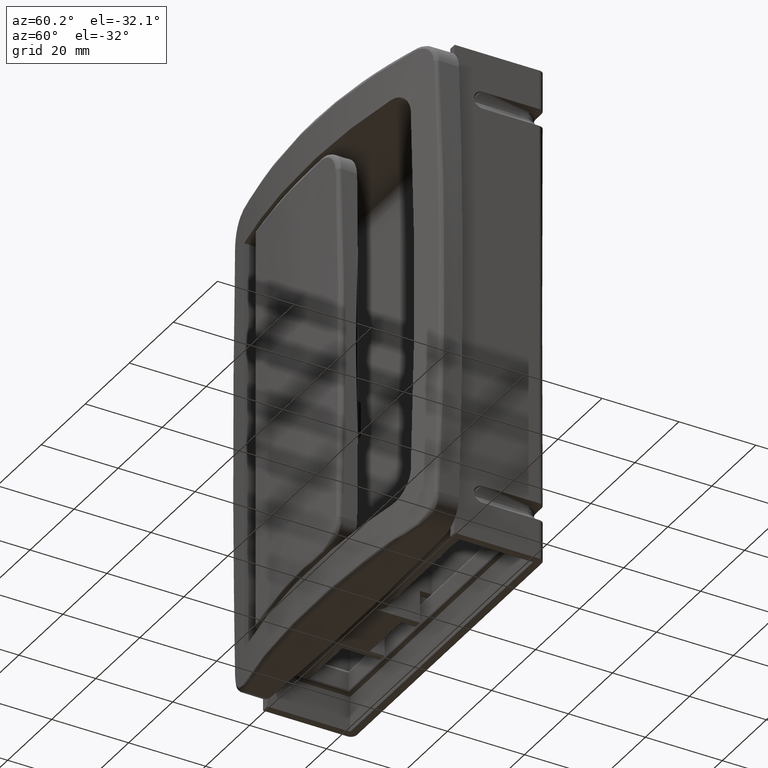
[diagram: clean part render]
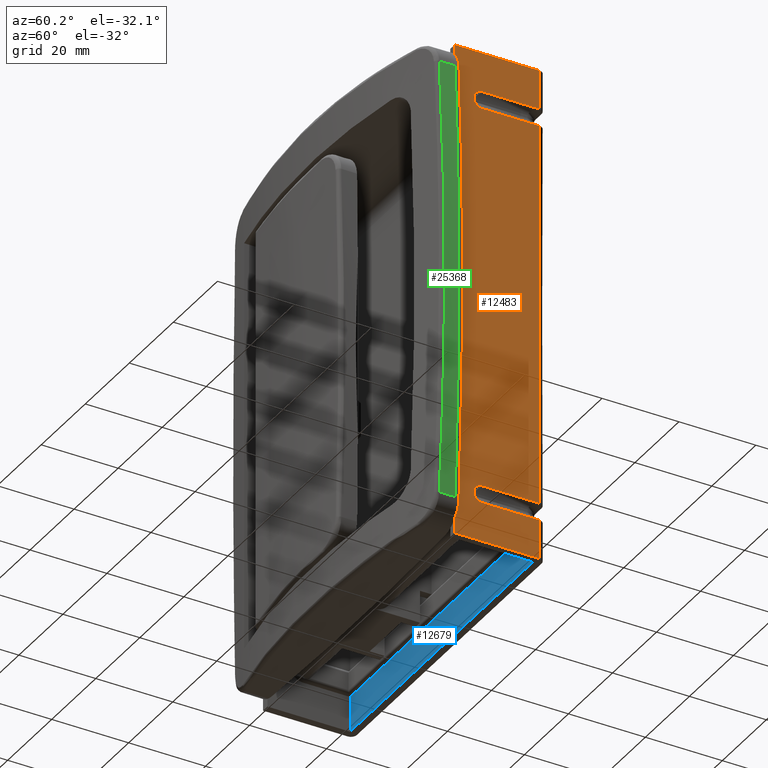
[diagram: same view with three faces highlighted in distinct colors, each labeled with its STEP entity id]
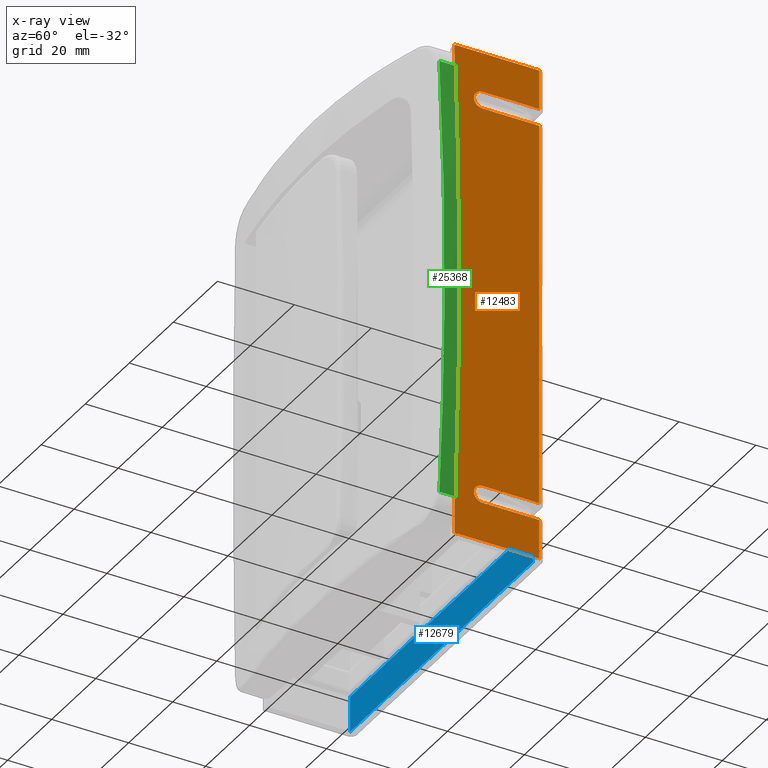
[diagram: x-ray of the same camera — body ghosted, the three highlighted faces saturated]
A machine part, auxiliary view with three faces highlighted in distinct colors.
The next image is the same camera in x-ray (body ghosted, the three faces saturated) — at least one of them is partly hidden behind the body in this view.
Their STEP definitions:

[orange] entity #12483 — the highlighted face is a freeform B-spline surface patch.
#4081=CARTESIAN_POINT('',(90.500007999999895,22.500000000000000,-65.0));
#4082=VERTEX_POINT('',#4081);
#4101=CARTESIAN_POINT('',(90.500007999999895,22.500000000000000,-54.739134001368008));
#4102=VERTEX_POINT('',#4101);
#4132=CARTESIAN_POINT('',(90.500007999999895,22.500000000000000,-65.0));
#4133=CARTESIAN_POINT('',(90.500007999999895,22.500000000000000,-54.739134001368008));
#4134=QUASI_UNIFORM_CURVE('',1,(#4132,#4133),.UNSPECIFIED.,.F.,.U.);
#4135=EDGE_CURVE('',#4082,#4102,#4134,.T.);
#4156=CARTESIAN_POINT('',(90.500007999999895,22.500000000000849,-50.260865998629200));
#4157=VERTEX_POINT('',#4156);
#4194=CARTESIAN_POINT('',(90.500007999999895,22.500000000000000,50.260865998632113));
#4195=VERTEX_POINT('',#4194);
#4225=CARTESIAN_POINT('',(90.500007999999895,22.500000000000849,-50.260865998629200));
#4226=CARTESIAN_POINT('',(90.500007999999895,22.500000000000000,50.260865998632113));
#4227=QUASI_UNIFORM_CURVE('',1,(#4225,#4226),.UNSPECIFIED.,.F.,.U.);
#4228=EDGE_CURVE('',#4157,#4195,#4227,.T.);
#4324=CARTESIAN_POINT('',(90.500007999999895,22.500000000000799,54.739134001370907));
#4325=VERTEX_POINT('',#4324);
#4362=CARTESIAN_POINT('',(90.500007999999895,22.500000000000000,65.0));
#4363=VERTEX_POINT('',#4362);
#4375=CARTESIAN_POINT('',(90.500007999999895,22.500000000000799,54.739134001370907));
#4376=CARTESIAN_POINT('',(90.500007999999895,22.500000000000000,65.0));
#4377=QUASI_UNIFORM_CURVE('',1,(#4375,#4376),.UNSPECIFIED.,.F.,.U.);
#4378=EDGE_CURVE('',#4325,#4363,#4377,.T.);
#9035=CARTESIAN_POINT('',(90.500007999999895,6.841988990998340,50.450457898386396));
#9036=VERTEX_POINT('',#9035);
#9037=CARTESIAN_POINT('',(90.500007999999895,7.736068000000000,50.263931999999997));
#9038=VERTEX_POINT('',#9037);
#9039=CARTESIAN_POINT('',(90.500007999999895,6.841988990998340,50.450457898386396));
#9040=CARTESIAN_POINT('',(90.500007999999852,7.122954766040517,50.327615209115820));
#9041=CARTESIAN_POINT('',(90.500007999999880,7.429437283970844,50.263752491338067));
#9042=CARTESIAN_POINT('',(90.500007999999895,7.736068000000000,50.263931999999997));
#9043=B_SPLINE_CURVE_WITH_KNOTS('',3,(#9039,#9040,#9041,#9042),.UNSPECIFIED.,.F.,.U.,(4,4),(0.000000015188759,0.919825081763624),.UNSPECIFIED.);
#9044=EDGE_CURVE('',#9036,#9038,#9043,.T.);
#9335=CARTESIAN_POINT('',(90.500007999999895,6.841988990998650,54.549542101613703));
#9336=VERTEX_POINT('',#9335);
#9415=CARTESIAN_POINT('',(90.500007999999895,7.736068000000000,54.736068000000003));
#9416=VERTEX_POINT('',#9415);
#9424=CARTESIAN_POINT('',(90.500007999999895,7.736068000000000,54.736068000000003));
#9425=CARTESIAN_POINT('',(90.500008000000037,7.429419736190901,54.736322420457398));
#9426=CARTESIAN_POINT('',(90.500007999999809,7.122971443083976,54.672309754614012));
#9427=CARTESIAN_POINT('',(90.500007999999895,6.841988990998650,54.549542101613703));
#9428=B_SPLINE_CURVE_WITH_KNOTS('',3,(#9424,#9425,#9426,#9427),.UNSPECIFIED.,.F.,.U.,(4,4),(0.000000015188983,0.919825081763299),.UNSPECIFIED.);
#9429=EDGE_CURVE('',#9416,#9336,#9428,.T.);
#9455=CARTESIAN_POINT('',(90.500007999999895,6.841988990998700,-54.549542101613703));
#9456=VERTEX_POINT('',#9455);
#9457=CARTESIAN_POINT('',(90.500007999999895,7.736068000000000,-54.736068000000003));
#9458=VERTEX_POINT('',#9457);
#9459=CARTESIAN_POINT('',(90.500007999999895,6.841988990998700,-54.549542101613703));
#9460=CARTESIAN_POINT('',(90.500008000000065,7.122970855197654,-54.672310233115667));
#9461=CARTESIAN_POINT('',(90.500007999999809,7.429418714973762,-54.736323974038129));
#9462=CARTESIAN_POINT('',(90.500007999999895,7.736068000000000,-54.736068000000003));
#9463=B_SPLINE_CURVE_WITH_KNOTS('',3,(#9459,#9460,#9461,#9462),.UNSPECIFIED.,.F.,.U.,(4,4),(0.000000015188619,0.919825081763256),.UNSPECIFIED.);
#9464=EDGE_CURVE('',#9456,#9458,#9463,.T.);
#9755=CARTESIAN_POINT('',(90.500007999999895,6.841988990998300,-50.450457898386396));
#9756=VERTEX_POINT('',#9755);
#9835=CARTESIAN_POINT('',(90.500007999999895,7.736068000000000,-50.263931999999997));
#9836=VERTEX_POINT('',#9835);
#9844=CARTESIAN_POINT('',(90.500007999999895,7.736068000000000,-50.263931999999997));
#9845=CARTESIAN_POINT('',(90.500007999999951,7.429424338952925,-50.263676068050067));
#9846=CARTESIAN_POINT('',(90.500007999999951,7.122969569611451,-50.327690644010012));
#9847=CARTESIAN_POINT('',(90.500007999999895,6.841988990998300,-50.450457898386396));
#9848=B_SPLINE_CURVE_WITH_KNOTS('',3,(#9844,#9845,#9846,#9847),.UNSPECIFIED.,.F.,.U.,(4,4),(0.000000015188719,0.919825081763664),.UNSPECIFIED.);
#9849=EDGE_CURVE('',#9836,#9756,#9848,.T.);
#9943=CARTESIAN_POINT('',(90.500007999999895,22.314257605906501,50.263931999999997));
#9944=VERTEX_POINT('',#9943);
#9945=CARTESIAN_POINT('',(90.500007999999895,22.500000000000000,50.260865998632113));
#9946=CARTESIAN_POINT('',(90.500007999999895,22.314257605906501,50.263931999999997));
#9947=QUASI_UNIFORM_CURVE('',1,(#9945,#9946),.UNSPECIFIED.,.F.,.U.);
#9948=EDGE_CURVE('',#4195,#9944,#9947,.T.);
#10180=CARTESIAN_POINT('',(90.500007999999895,22.314257605902899,54.736068000000103));
#10181=VERTEX_POINT('',#10180);
#10182=CARTESIAN_POINT('',(90.500007999999895,22.314257605902899,54.736068000000103));
#10183=CARTESIAN_POINT('',(90.500007999999895,22.500000000000799,54.739134001370907));
#10184=QUASI_UNIFORM_CURVE('',1,(#10182,#10183),.UNSPECIFIED.,.F.,.U.);
#10185=EDGE_CURVE('',#10181,#4325,#10184,.T.);
#10327=CARTESIAN_POINT('',(90.500007999999895,22.314257605906601,-54.736068000000103));
#10328=VERTEX_POINT('',#10327);
#10329=CARTESIAN_POINT('',(90.500007999999895,22.500000000000000,-54.739134001368008));
#10330=CARTESIAN_POINT('',(90.500007999999895,22.314257605906601,-54.736068000000103));
#10331=QUASI_UNIFORM_CURVE('',1,(#10329,#10330),.UNSPECIFIED.,.F.,.U.);
#10332=EDGE_CURVE('',#4102,#10328,#10331,.T.);
#10564=CARTESIAN_POINT('',(90.500007999999895,22.314257605902799,-50.263931999999997));
#10565=VERTEX_POINT('',#10564);
#10566=CARTESIAN_POINT('',(90.500007999999895,22.314257605902799,-50.263931999999997));
#10567=CARTESIAN_POINT('',(90.500007999999895,22.500000000000849,-50.260865998629200));
#10568=QUASI_UNIFORM_CURVE('',1,(#10566,#10567),.UNSPECIFIED.,.F.,.U.);
#10569=EDGE_CURVE('',#10565,#4157,#10568,.T.);
#11021=CARTESIAN_POINT('',(90.500007999999895,7.736068000000000,-50.263931999999997));
#11022=CARTESIAN_POINT('',(90.500007999999895,22.314257605902799,-50.263931999999997));
#11023=QUASI_UNIFORM_CURVE('',1,(#11021,#11022),.UNSPECIFIED.,.F.,.U.);
#11024=EDGE_CURVE('',#9836,#10565,#11023,.T.);
#11058=CARTESIAN_POINT('',(90.500007999999895,22.314257605906601,-54.736068000000103));
#11059=CARTESIAN_POINT('',(90.500007999999895,7.736068000000000,-54.736068000000003));
#11060=QUASI_UNIFORM_CURVE('',1,(#11058,#11059),.UNSPECIFIED.,.F.,.U.);
#11061=EDGE_CURVE('',#10328,#9458,#11060,.T.);
#11081=CARTESIAN_POINT('',(90.500007999999895,7.736068000000000,54.736068000000003));
#11082=CARTESIAN_POINT('',(90.500007999999895,22.314257605902899,54.736068000000103));
#11083=QUASI_UNIFORM_CURVE('',1,(#11081,#11082),.UNSPECIFIED.,.F.,.U.);
#11084=EDGE_CURVE('',#9416,#10181,#11083,.T.);
#11118=CARTESIAN_POINT('',(90.500007999999895,22.314257605906501,50.263931999999997));
#11119=CARTESIAN_POINT('',(90.500007999999895,7.736068000000000,50.263931999999997));
#11120=QUASI_UNIFORM_CURVE('',1,(#11118,#11119),.UNSPECIFIED.,.F.,.U.);
#11121=EDGE_CURVE('',#9944,#9038,#11120,.T.);
#11217=CARTESIAN_POINT('',(90.500007999999895,6.841988990998300,-50.450457898386396));
#11218=CARTESIAN_POINT('',(90.500007999999951,6.681085157835209,-50.520623749544363));
#11219=CARTESIAN_POINT('',(90.500007999999795,6.352415297755869,-50.712796766227648));
#11220=CARTESIAN_POINT('',(90.500008000000221,5.985269229766638,-51.078009529676081));
#11221=CARTESIAN_POINT('',(90.500007999999568,5.681932973739006,-51.560033043402328));
#11222=CARTESIAN_POINT('',(90.500008000000037,5.524366432123173,-52.040330274246621));
#11223=CARTESIAN_POINT('',(90.500007999999767,5.482186278650355,-52.621834117978203));
#11224=CARTESIAN_POINT('',(90.500008000000079,5.586044346410840,-53.254758704184141));
#11225=CARTESIAN_POINT('',(90.500007999999781,5.888235997816576,-53.810332209872350));
#11226=CARTESIAN_POINT('',(90.500008000000065,6.331712343627014,-54.267379709887649));
#11227=CARTESIAN_POINT('',(90.500007999999852,6.631529515870010,-54.457869639579897));
#11228=CARTESIAN_POINT('',(90.500007999999895,6.841988990998700,-54.549542101613703));
#11229=B_SPLINE_CURVE_WITH_KNOTS('',3,(#11217,#11218,#11219,#11220,#11221,#11222,#11223,#11224,#11225,#11226,#11227,#11228),.UNSPECIFIED.,.F.,.U.,(4,1,1,1,1,1,1,1,1,4),(0.000000559521575,0.526623206925366,1.134276136894677,1.539400461683725,2.228084194562006,2.633075048941787,3.281270247098040,4.132040012473135,4.496659278005218,5.185286186853617),.UNSPECIFIED.);
#11230=EDGE_CURVE('',#9756,#9456,#11229,.T.);
#11318=CARTESIAN_POINT('',(90.500007999999895,6.841988990998650,54.549542101613703));
#11319=CARTESIAN_POINT('',(90.500007999999852,6.656325586452666,54.468604255766778));
#11320=CARTESIAN_POINT('',(90.500007999999980,6.272244546135048,54.234580519912988));
#11321=CARTESIAN_POINT('',(90.500007999999951,5.854987240452618,53.763351556459540));
#11322=CARTESIAN_POINT('',(90.500007999999951,5.592318174821489,53.210656816266628));
#11323=CARTESIAN_POINT('',(90.500007999999809,5.492630744359679,52.717017097072919));
#11324=CARTESIAN_POINT('',(90.500007999999951,5.502861278070986,52.147608290336343));
#11325=CARTESIAN_POINT('',(90.500007999999895,5.646086782145650,51.633618190647397));
#11326=CARTESIAN_POINT('',(90.500007999999966,5.957215887185667,51.108042889012083));
#11327=CARTESIAN_POINT('',(90.500007999999823,6.340670491588431,50.719636122102557));
#11328=CARTESIAN_POINT('',(90.500007999999937,6.681100678417296,50.520623333475832));
#11329=CARTESIAN_POINT('',(90.500007999999895,6.841988990998340,50.450457898386396));
#11330=B_SPLINE_CURVE_WITH_KNOTS('',3,(#11318,#11319,#11320,#11321,#11322,#11323,#11324,#11325,#11326,#11327,#11328,#11329),.UNSPECIFIED.,.F.,.U.,(4,1,1,1,1,1,1,1,1,4),(0.000000559503822,0.607628785844847,1.336833803815016,1.863479509384193,2.430665834438009,2.835635038415343,3.564867251871250,4.010498746853969,4.658701087597367,5.185286186853601),.UNSPECIFIED.);
#11331=EDGE_CURVE('',#9336,#9036,#11330,.T.);
#12259=CARTESIAN_POINT('',(90.500007999999895,0.500000000000114,65.0));
#12260=VERTEX_POINT('',#12259);
#12261=CARTESIAN_POINT('',(90.500007999999895,22.500000000000000,65.0));
#12262=CARTESIAN_POINT('',(90.500007999999895,0.500000000000114,65.0));
#12263=QUASI_UNIFORM_CURVE('',1,(#12261,#12262),.UNSPECIFIED.,.F.,.U.);
#12264=EDGE_CURVE('',#4363,#12260,#12263,.T.);
#12327=CARTESIAN_POINT('',(90.500007999999895,0.500000000000114,-65.0));
#12328=VERTEX_POINT('',#12327);
#12329=CARTESIAN_POINT('',(90.500007999999895,22.500000000000000,-65.0));
#12330=CARTESIAN_POINT('',(90.500007999999895,0.500000000000114,-65.0));
#12331=QUASI_UNIFORM_CURVE('',1,(#12329,#12330),.UNSPECIFIED.,.F.,.U.);
#12332=EDGE_CURVE('',#4082,#12328,#12331,.T.);
#12430=CARTESIAN_POINT('',(90.500007999999895,0.500000000000114,-65.0));
#12431=CARTESIAN_POINT('',(90.500007999999895,0.500000000000114,65.0));
#12432=QUASI_UNIFORM_CURVE('',1,(#12430,#12431),.UNSPECIFIED.,.F.,.U.);
#12433=EDGE_CURVE('',#12328,#12260,#12432,.T.);
#12456=CARTESIAN_POINT('',(90.500007999999895,-0.598899957359655,-71.493499748034765));
#12457=CARTESIAN_POINT('',(90.500007999999895,-0.598899957359655,71.493503234906484));
#12458=CARTESIAN_POINT('',(90.500007999999895,23.598900547446600,-71.493499748034765));
#12459=CARTESIAN_POINT('',(90.500007999999895,23.598900547446600,71.493503234906484));
#12460=B_SPLINE_SURFACE_WITH_KNOTS('',1,1,((#12456,#12458),(#12457,#12459)),.UNSPECIFIED.,.F.,.F.,.U.,(2,2),(2,2),(0.0,142.987002982941310),(0.0,24.197800504806260),.UNSPECIFIED.);
#12461=ORIENTED_EDGE('',*,*,#10185,.T.);
#12462=ORIENTED_EDGE('',*,*,#4378,.T.);
#12463=ORIENTED_EDGE('',*,*,#12264,.T.);
#12464=ORIENTED_EDGE('',*,*,#12433,.F.);
#12465=ORIENTED_EDGE('',*,*,#12332,.F.);
#12466=ORIENTED_EDGE('',*,*,#4135,.T.);
#12467=ORIENTED_EDGE('',*,*,#10332,.T.);
#12468=ORIENTED_EDGE('',*,*,#11061,.T.);
#12469=ORIENTED_EDGE('',*,*,#9464,.F.);
#12470=ORIENTED_EDGE('',*,*,#11230,.F.);
#12471=ORIENTED_EDGE('',*,*,#9849,.F.);
#12472=ORIENTED_EDGE('',*,*,#11024,.T.);
#12473=ORIENTED_EDGE('',*,*,#10569,.T.);
#12474=ORIENTED_EDGE('',*,*,#4228,.T.);
#12475=ORIENTED_EDGE('',*,*,#9948,.T.);
#12476=ORIENTED_EDGE('',*,*,#11121,.T.);
#12477=ORIENTED_EDGE('',*,*,#9044,.F.);
#12478=ORIENTED_EDGE('',*,*,#11331,.F.);
#12479=ORIENTED_EDGE('',*,*,#9429,.F.);
#12480=ORIENTED_EDGE('',*,*,#11084,.T.);
#12481=EDGE_LOOP('',(#12461,#12462,#12463,#12464,#12465,#12466,#12467,#12468,#12469,#12470,#12471,#12472,#12473,#12474,#12475,#12476,#12477,#12478,#12479,#12480));
#12482=FACE_OUTER_BOUND('',#12481,.T.);
#12483=ADVANCED_FACE('',(#12482),#12460,.F.);

[blue] entity #12679 — the highlighted face is a freeform B-spline surface patch.
#7460=CARTESIAN_POINT('',(88.500007999999895,22.0,-55.736068000000103));
#7461=VERTEX_POINT('',#7460);
#7563=CARTESIAN_POINT('',(5.500008000000000,22.0,-55.736068000000103));
#7564=VERTEX_POINT('',#7563);
#7578=CARTESIAN_POINT('',(88.500007999999895,22.0,-55.736068000000103));
#7579=CARTESIAN_POINT('',(5.500008000000000,22.0,-55.736068000000103));
#7580=QUASI_UNIFORM_CURVE('',1,(#7578,#7579),.UNSPECIFIED.,.F.,.U.);
#7581=EDGE_CURVE('',#7461,#7564,#7580,.T.);
#12341=CARTESIAN_POINT('',(88.500007999999895,22.0,-65.0));
#12342=VERTEX_POINT('',#12341);
#12348=CARTESIAN_POINT('',(5.500008000000000,22.0,-65.0));
#12349=VERTEX_POINT('',#12348);
#12350=CARTESIAN_POINT('',(88.500007999999895,22.0,-65.0));
#12351=CARTESIAN_POINT('',(5.500008000000000,22.0,-65.0));
#12352=QUASI_UNIFORM_CURVE('',1,(#12350,#12351),.UNSPECIFIED.,.F.,.U.);
#12353=EDGE_CURVE('',#12342,#12349,#12352,.T.);
#12660=CARTESIAN_POINT('',(1.354158160870109,22.0,-65.462733352347428));
#12661=CARTESIAN_POINT('',(1.354158160870109,22.0,-55.273335061782703));
#12662=CARTESIAN_POINT('',(92.645860065363266,22.0,-65.462733352347428));
#12663=CARTESIAN_POINT('',(92.645860065363266,22.0,-55.273335061782703));
#12664=B_SPLINE_SURFACE_WITH_KNOTS('',1,1,((#12660,#12662),(#12661,#12663)),.UNSPECIFIED.,.F.,.F.,.U.,(2,2),(2,2),(0.0,10.189398290564730),(0.0,91.291701904493152),.UNSPECIFIED.);
#12665=CARTESIAN_POINT('',(88.500007999999895,22.0,-65.0));
#12666=CARTESIAN_POINT('',(88.500007999999895,22.0,-55.736068000000103));
#12667=QUASI_UNIFORM_CURVE('',1,(#12665,#12666),.UNSPECIFIED.,.F.,.U.);
#12668=EDGE_CURVE('',#12342,#7461,#12667,.T.);
#12669=ORIENTED_EDGE('',*,*,#12668,.T.);
#12670=ORIENTED_EDGE('',*,*,#7581,.T.);
#12671=CARTESIAN_POINT('',(5.500008000000000,22.0,-65.0));
#12672=CARTESIAN_POINT('',(5.500008000000000,22.0,-55.736068000000103));
#12673=QUASI_UNIFORM_CURVE('',1,(#12671,#12672),.UNSPECIFIED.,.F.,.U.);
#12674=EDGE_CURVE('',#12349,#7564,#12673,.T.);
#12675=ORIENTED_EDGE('',*,*,#12674,.F.);
#12676=ORIENTED_EDGE('',*,*,#12353,.F.);
#12677=EDGE_LOOP('',(#12669,#12670,#12675,#12676));
#12678=FACE_OUTER_BOUND('',#12677,.T.);
#12679=ADVANCED_FACE('',(#12678),#12664,.F.);

[green] entity #25368 — the highlighted face is a freeform B-spline surface patch.
#22650=CARTESIAN_POINT('',(93.352146958775407,-4.130335608736100,57.384585585241012));
#22651=VERTEX_POINT('',#22650);
#22963=CARTESIAN_POINT('',(93.352146958777709,-4.130335608735545,-57.384585585501512));
#22964=VERTEX_POINT('',#22963);
#22975=CARTESIAN_POINT('',(93.352146958775506,-4.130335608736075,57.384585585241012));
#22976=CARTESIAN_POINT('',(93.901884622791357,-3.996931836082747,47.820487987679151));
#22977=CARTESIAN_POINT('',(94.725640659295323,-3.792165913777707,28.692292792555399));
#22978=CARTESIAN_POINT('',(95.137179670352040,-3.687916263341038,-1.302135E-010));
#22979=CARTESIAN_POINT('',(94.725640378592416,-3.792166506632515,-28.692292792815881));
#22980=CARTESIAN_POINT('',(93.901884622793105,-3.996931836082323,-47.820487987939622));
#22981=CARTESIAN_POINT('',(93.352146958777595,-4.130335608735570,-57.384585585501512));
#22982=B_SPLINE_CURVE_WITH_KNOTS('',3,(#22975,#22976,#22977,#22978,#22979,#22980,#22981),.UNSPECIFIED.,.F.,.U.,(4,1,1,1,4),(0.0,0.250000000000000,0.500000000000000,0.750000000000000,1.0),.UNSPECIFIED.);
#22983=EDGE_CURVE('',#22651,#22964,#22982,.T.);
#25200=CARTESIAN_POINT('',(93.352146958775407,-3.197442E-011,57.384585585241012));
#25201=VERTEX_POINT('',#25200);
#25217=CARTESIAN_POINT('',(93.352146958777709,-3.197442E-011,-57.384585585501512));
#25218=VERTEX_POINT('',#25217);
#25219=CARTESIAN_POINT('',(93.352146958777709,-3.197442E-011,-57.384585585501512));
#25220=CARTESIAN_POINT('',(96.650572942868834,-3.197442E-011,-1.300847E-010));
#25221=CARTESIAN_POINT('',(93.352146958775407,-3.197442E-011,57.384585585241012));
#25229=(BOUNDED_CURVE()B_SPLINE_CURVE(2,(#25219,#25220,#25221),.UNSPECIFIED.,.F.,.U.)CURVE()GEOMETRIC_REPRESENTATION_ITEM()QUASI_UNIFORM_CURVE()RATIONAL_B_SPLINE_CURVE((1.0,0.998352146958775,1.0))REPRESENTATION_ITEM(''));
#25230=EDGE_CURVE('',#25218,#25201,#25229,.T.);
#25340=CARTESIAN_POINT('',(93.006939960653156,0.103258390185629,63.104261269377481));
#25341=CARTESIAN_POINT('',(93.006939960653156,-4.236175279858316,63.104261269377481));
#25342=CARTESIAN_POINT('',(96.997176125089155,0.103258390185629,-0.002148726933924));
#25343=CARTESIAN_POINT('',(96.997176125089155,-4.236175279858316,-0.002148726933924));
#25344=CARTESIAN_POINT('',(93.006669304371201,0.103258390185629,-63.108541608989277));
#25345=CARTESIAN_POINT('',(93.006669304371201,-4.236175279858316,-63.108541608989277));
#25353=(BOUNDED_SURFACE()B_SPLINE_SURFACE(1,2,((#25340,#25342,#25344),(#25341,#25343,#25345)),.UNSPECIFIED.,.F.,.F.,.U.)B_SPLINE_SURFACE_WITH_KNOTS((2,2),(3,3),(0.0,4.339433670043945),(20.487681201553340,146.831250378036490),.UNSPECIFIED.)GEOMETRIC_REPRESENTATION_ITEM()RATIONAL_B_SPLINE_SURFACE(((0.999122866106289,0.996741124572174,0.998340871269537),(0.999122866106289,0.996741124572174,0.998340871269537)))REPRESENTATION_ITEM('')SURFACE());
#25354=CARTESIAN_POINT('',(93.352146958775407,-3.197442E-011,57.384585585241012));
#25355=CARTESIAN_POINT('',(93.352146958775407,-4.130335608736100,57.384585585241012));
#25356=QUASI_UNIFORM_CURVE('',1,(#25354,#25355),.UNSPECIFIED.,.F.,.U.);
#25357=EDGE_CURVE('',#25201,#22651,#25356,.T.);
#25358=ORIENTED_EDGE('',*,*,#25357,.T.);
#25359=ORIENTED_EDGE('',*,*,#22983,.T.);
#25360=CARTESIAN_POINT('',(93.352146958777709,-3.197442E-011,-57.384585585501512));
#25361=CARTESIAN_POINT('',(93.352146958777709,-4.130335608735545,-57.384585585501512));
#25362=QUASI_UNIFORM_CURVE('',1,(#25360,#25361),.UNSPECIFIED.,.F.,.U.);
#25363=EDGE_CURVE('',#25218,#22964,#25362,.T.);
#25364=ORIENTED_EDGE('',*,*,#25363,.F.);
#25365=ORIENTED_EDGE('',*,*,#25230,.T.);
#25366=EDGE_LOOP('',(#25358,#25359,#25364,#25365));
#25367=FACE_OUTER_BOUND('',#25366,.T.);
#25368=ADVANCED_FACE('',(#25367),#25353,.T.);